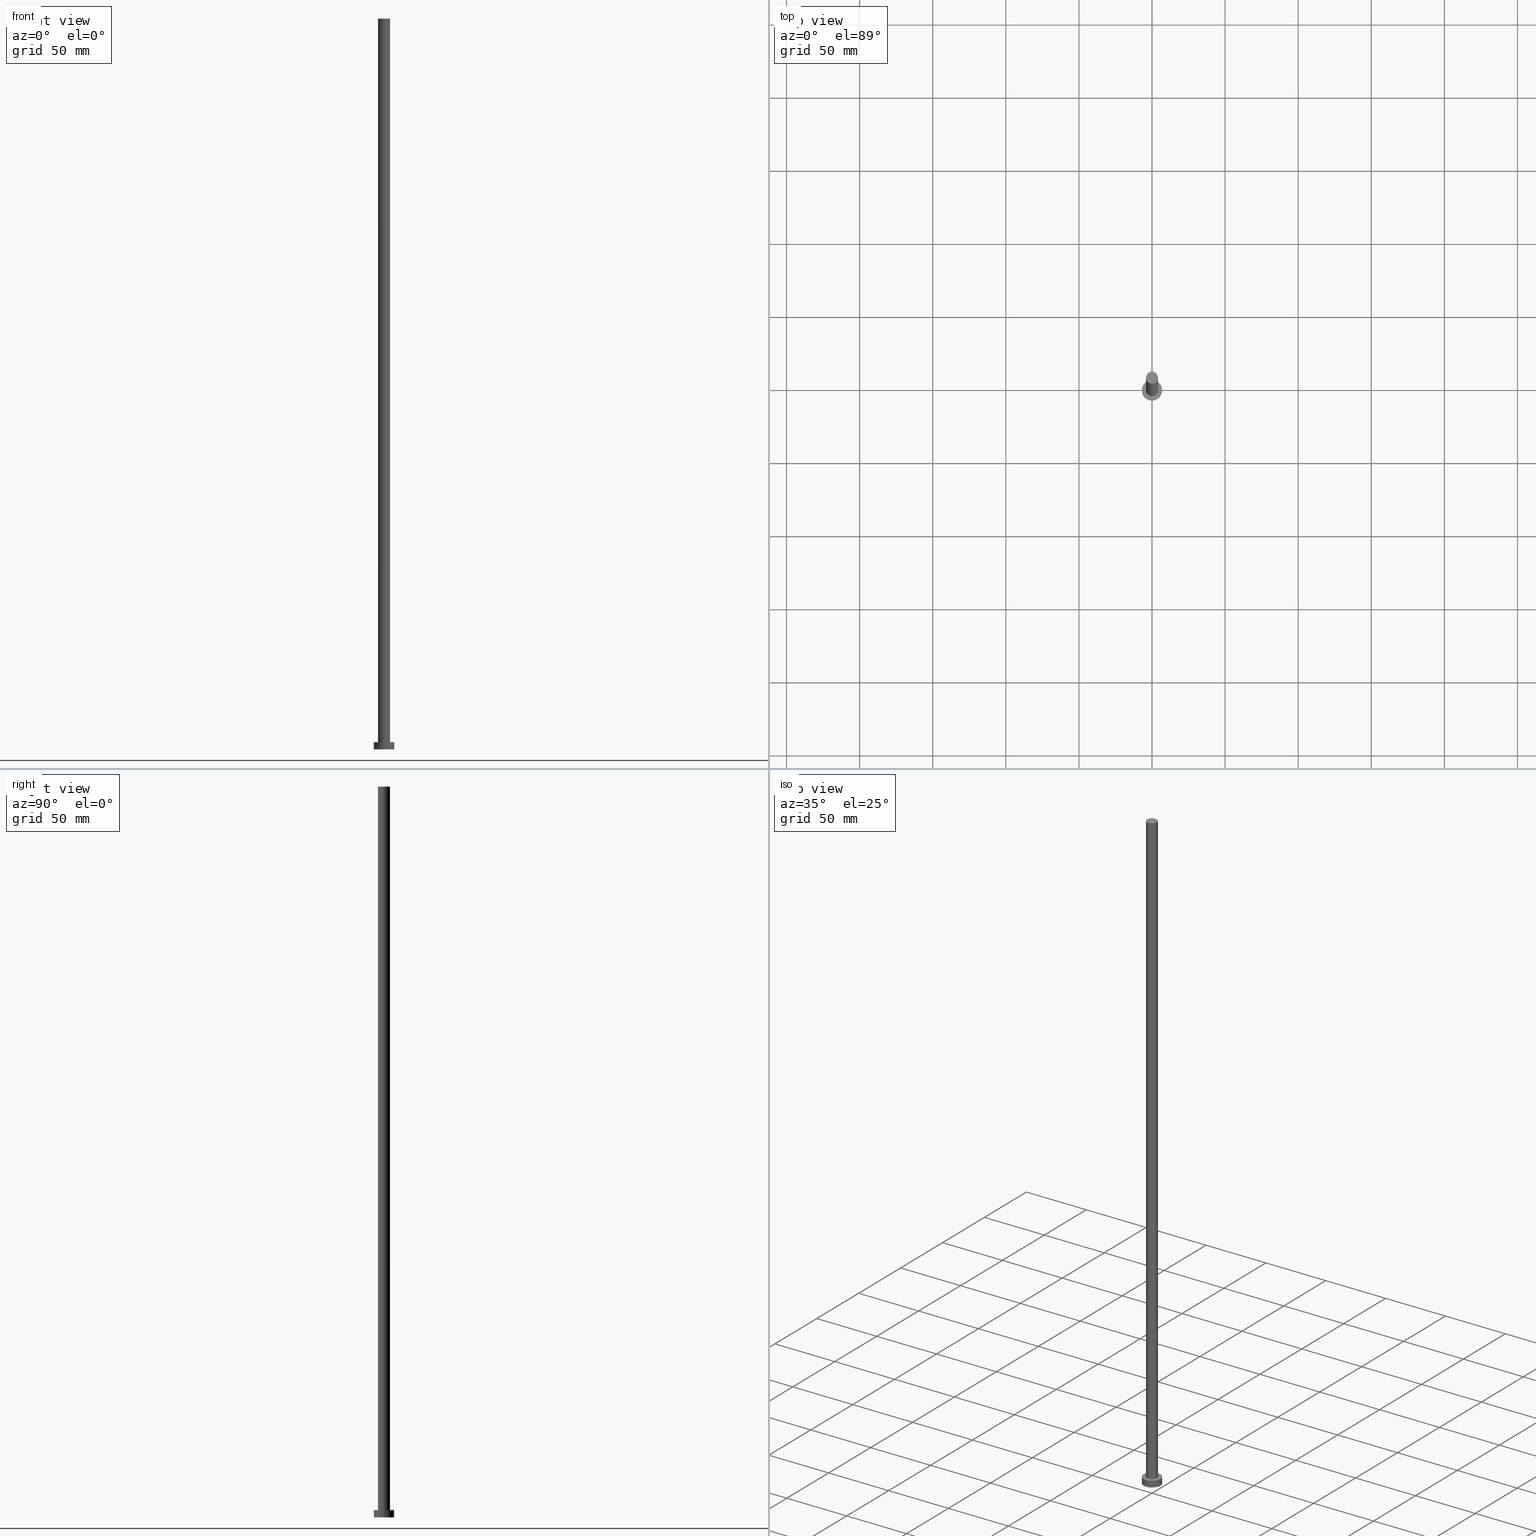
[diagram: canonical four-view strip — front | top / right | iso, engineering-drawing reading convention]
A machine part, canonical four-view strip (front | top / right | iso — engineering-drawing reading convention). The complete STEP part file that produces these views, byte-faithful:
ISO-10303-21;
HEADER;
FILE_DESCRIPTION (( 'STEP AP203' ),
    '1' );
FILE_NAME ('b986.STEP',
    '2023-02-12T11:11:28',
    ( '' ),
    ( '' ),
    'SwSTEP 2.0',
    'SolidWorks 2019',
    '' );
FILE_SCHEMA (( 'CONFIG_CONTROL_DESIGN' ));
ENDSEC;

DATA;
#1 = ORIENTED_EDGE ( 'NONE', *, *, #46, .F. ) ;
#2 = AXIS2_PLACEMENT_3D ( 'NONE', #101, #66, #202 ) ;
#3 = LINE ( 'NONE', #76, #24 ) ;
#4 = AXIS2_PLACEMENT_3D ( 'NONE', #176, #218, #241 ) ;
#5 = FACE_BOUND ( 'NONE', #37, .T. ) ;
#6 = DIRECTION ( 'NONE',  ( 1.000000000000000000, 0.000000000000000000, 0.000000000000000000 ) ) ;
#7 = CC_DESIGN_APPROVAL ( #210, ( #185 ) ) ;
#8 = CARTESIAN_POINT ( 'NONE',  ( 0.000000000000000000, 0.000000000000000000, 500.0000000000000000 ) ) ;
#9 = CYLINDRICAL_SURFACE ( 'NONE', #200, 4.099999999999999645 ) ;
#10 = AXIS2_PLACEMENT_3D ( 'NONE', #243, #203, #157 ) ;
#11 = AXIS2_PLACEMENT_3D ( 'NONE', #245, #50, #89 ) ;
#12 = DIRECTION ( 'NONE',  ( 0.000000000000000000, 0.000000000000000000, 1.000000000000000000 ) ) ;
#13 = APPROVAL_ROLE ( '' ) ;
#14 = LOCAL_TIME ( 12, 11, 28.00000000000000000, #171 ) ;
#15 = APPROVAL_ROLE ( '' ) ;
#16 = PERSON_AND_ORGANIZATION_ROLE ( 'creator' ) ;
#17 = VERTEX_POINT ( 'NONE', #193 ) ;
#18 = EDGE_LOOP ( 'NONE', ( #20, #98, #63, #148 ) ) ;
#19 = AXIS2_PLACEMENT_3D ( 'NONE', #124, #160, #199 ) ;
#20 = ORIENTED_EDGE ( 'NONE', *, *, #82, .F. ) ;
#21 = ADVANCED_FACE ( 'NONE', ( #179 ), #62, .T. ) ;
#22 = LINE ( 'NONE', #151, #88 ) ;
#23 = EDGE_LOOP ( 'NONE', ( #196, #188 ) ) ;
#24 = VECTOR ( 'NONE', #194, 1000.000000000000000 ) ;
#25 = DIRECTION ( 'NONE',  ( 1.000000000000000000, 0.000000000000000000, 0.000000000000000000 ) ) ;
#26 = FACE_OUTER_BOUND ( 'NONE', #253, .T. ) ;
#27 = PRODUCT ( 'b986', 'b986', '', ( #187 ) ) ;
#28 = DIRECTION ( 'NONE',  ( 0.000000000000000000, 0.000000000000000000, 1.000000000000000000 ) ) ;
#29 = DIRECTION ( 'NONE',  ( -0.000000000000000000, -0.000000000000000000, -1.000000000000000000 ) ) ;
#30 = ADVANCED_FACE ( 'NONE', ( #5, #255 ), #77, .T. ) ;
#31 = CYLINDRICAL_SURFACE ( 'NONE', #254, 4.099999999999999645 ) ;
#32 = PERSON_AND_ORGANIZATION_ROLE ( 'design_supplier' ) ;
#33 = DATE_AND_TIME ( #128, #215 ) ;
#34 = APPROVAL_STATUS ( 'not_yet_approved' ) ;
#35 = CC_DESIGN_PERSON_AND_ORGANIZATION_ASSIGNMENT ( #211, #249, ( #181 ) ) ;
#36 = AXIS2_PLACEMENT_3D ( 'NONE', #191, #120, #174 ) ;
#37 = EDGE_LOOP ( 'NONE', ( #80, #74 ) ) ;
#38 = LOCAL_TIME ( 12, 11, 28.00000000000000000, #145 ) ;
#39 = ORIENTED_EDGE ( 'NONE', *, *, #40, .T. ) ;
#40 = EDGE_CURVE ( 'NONE', #240, #135, #236, .T. ) ;
#41 = ORIENTED_EDGE ( 'NONE', *, *, #40, .F. ) ;
#42 = VECTOR ( 'NONE', #136, 1000.000000000000000 ) ;
#43 = DIRECTION ( 'NONE',  ( 0.000000000000000000, 0.000000000000000000, 1.000000000000000000 ) ) ;
#44 = EDGE_LOOP ( 'NONE', ( #1, #39, #95, #237 ) ) ;
#45 = CARTESIAN_POINT ( 'NONE',  ( -7.000000000000000000, 0.000000000000000000, 0.000000000000000000 ) ) ;
#46 = EDGE_CURVE ( 'NONE', #240, #216, #109, .T. ) ;
#47 = CARTESIAN_POINT ( 'NONE',  ( -4.099999999999999645, 0.000000000000000000, 500.0000000000000000 ) ) ;
#48 = CARTESIAN_POINT ( 'NONE',  ( -4.099999999999999645, 0.000000000000000000, 500.0000000000000000 ) ) ;
#49 = EDGE_CURVE ( 'NONE', #216, #240, #161, .T. ) ;
#50 = DIRECTION ( 'NONE',  ( 0.000000000000000000, 0.000000000000000000, 1.000000000000000000 ) ) ;
#51 = CARTESIAN_POINT ( 'NONE',  ( -4.099999999999999645, 0.000000000000000000, 5.000000000000000000 ) ) ;
#52 = UNCERTAINTY_MEASURE_WITH_UNIT (LENGTH_MEASURE( 1.000000000000000082E-05 ), #225, 'distance_accuracy_value', 'NONE');
#53 = APPROVAL_STATUS ( 'not_yet_approved' ) ;
#54 = PERSON_AND_ORGANIZATION ( #231, #149 ) ;
#55 = APPLICATION_PROTOCOL_DEFINITION ( 'international standard', 'config_control_design', 1994, #105 ) ;
#56 = APPLICATION_CONTEXT ( 'configuration controlled 3d designs of mechanical parts and assemblies' ) ;
#57 = VECTOR ( 'NONE', #182, 1000.000000000000000 ) ;
#58 = PERSON_AND_ORGANIZATION ( #231, #149 ) ;
#59 = DIRECTION ( 'NONE',  ( 1.000000000000000000, 0.000000000000000000, 0.000000000000000000 ) ) ;
#60 = DIRECTION ( 'NONE',  ( 0.000000000000000000, 0.000000000000000000, 1.000000000000000000 ) ) ;
#61 = CARTESIAN_POINT ( 'NONE',  ( 0.000000000000000000, 0.000000000000000000, 500.0000000000000000 ) ) ;
#62 = PLANE ( 'NONE',  #81 ) ;
#63 = ORIENTED_EDGE ( 'NONE', *, *, #206, .T. ) ;
#64 = CARTESIAN_POINT ( 'NONE',  ( 0.000000000000000000, 0.000000000000000000, 500.0000000000000000 ) ) ;
#65 = CARTESIAN_POINT ( 'NONE',  ( 0.000000000000000000, 0.000000000000000000, 500.0000000000000000 ) ) ;
#66 = DIRECTION ( 'NONE',  ( 0.000000000000000000, 0.000000000000000000, 1.000000000000000000 ) ) ;
#67 = AXIS2_PLACEMENT_3D ( 'NONE', #222, #244, #6 ) ;
#68 = COORDINATED_UNIVERSAL_TIME_OFFSET ( 1, 0, .AHEAD. ) ;
#69 = SHAPE_DEFINITION_REPRESENTATION ( #99, #79 ) ;
#70 = APPROVAL_STATUS ( 'not_yet_approved' ) ;
#71 = PERSON_AND_ORGANIZATION ( #231, #149 ) ;
#72 = EDGE_CURVE ( 'NONE', #216, #178, #3, .T. ) ;
#73 = APPROVAL_DATE_TIME ( #207, #210 ) ;
#74 = ORIENTED_EDGE ( 'NONE', *, *, #247, .F. ) ;
#75 = LOCAL_TIME ( 12, 11, 28.00000000000000000, #68 ) ;
#76 = CARTESIAN_POINT ( 'NONE',  ( -7.000000000000000000, 0.000000000000000000, 5.000000000000000000 ) ) ;
#77 = PLANE ( 'NONE',  #4 ) ;
#78 = EDGE_LOOP ( 'NONE', ( #131, #119 ) ) ;
#79 = ADVANCED_BREP_SHAPE_REPRESENTATION ( 'b986', ( #150, #195 ), #121 ) ;
#80 = ORIENTED_EDGE ( 'NONE', *, *, #168, .F. ) ;
#81 = AXIS2_PLACEMENT_3D ( 'NONE', #61, #60, #133 ) ;
#82 = EDGE_CURVE ( 'NONE', #17, #97, #22, .T. ) ;
#83 = ORIENTED_EDGE ( 'NONE', *, *, #72, .T. ) ;
#84 = LINE ( 'NONE', #47, #57 ) ;
#85 = LOCAL_TIME ( 12, 11, 28.00000000000000000, #167 ) ;
#86 = DIRECTION ( 'NONE',  ( 0.000000000000000000, 0.000000000000000000, 1.000000000000000000 ) ) ;
#87 = ADVANCED_FACE ( 'NONE', ( #117 ), #192, .T. ) ;
#88 = VECTOR ( 'NONE', #214, 1000.000000000000000 ) ;
#89 = DIRECTION ( 'NONE',  ( 1.000000000000000000, 0.000000000000000000, 0.000000000000000000 ) ) ;
#90 = APPROVAL_DATE_TIME ( #143, #250 ) ;
#91 = EDGE_CURVE ( 'NONE', #17, #111, #230, .T. ) ;
#92 = CC_DESIGN_DATE_AND_TIME_ASSIGNMENT ( #108, #169, ( #238 ) ) ;
#93 = PERSON_AND_ORGANIZATION_ROLE ( 'design_owner' ) ;
#94 = ORIENTED_EDGE ( 'NONE', *, *, #82, .T. ) ;
#95 = ORIENTED_EDGE ( 'NONE', *, *, #189, .T. ) ;
#96 = ORIENTED_EDGE ( 'NONE', *, *, #49, .F. ) ;
#97 = VERTEX_POINT ( 'NONE', #137 ) ;
#98 = ORIENTED_EDGE ( 'NONE', *, *, #213, .F. ) ;
#99 = PRODUCT_DEFINITION_SHAPE ( 'NONE', 'NONE',  #238 ) ;
#100 = CARTESIAN_POINT ( 'NONE',  ( 7.000000000000000000, 8.572527594031473190E-16, 0.000000000000000000 ) ) ;
#101 = CARTESIAN_POINT ( 'NONE',  ( 0.000000000000000000, 0.000000000000000000, 0.000000000000000000 ) ) ;
#102 = CC_DESIGN_APPROVAL ( #197, ( #181 ) ) ;
#103 = CARTESIAN_POINT ( 'NONE',  ( -7.000000000000000000, 0.000000000000000000, 5.000000000000000000 ) ) ;
#104 = DIRECTION ( 'NONE',  ( 1.000000000000000000, 0.000000000000000000, 0.000000000000000000 ) ) ;
#105 = APPLICATION_CONTEXT ( 'configuration controlled 3d designs of mechanical parts and assemblies' ) ;
#106 = DIRECTION ( 'NONE',  ( 1.000000000000000000, 0.000000000000000000, 0.000000000000000000 ) ) ;
#107 = ADVANCED_FACE ( 'NONE', ( #26 ), #31, .T. ) ;
#108 = DATE_AND_TIME ( #170, #14 ) ;
#109 = CIRCLE ( 'NONE', #142, 7.000000000000000000 ) ;
#110 = CC_DESIGN_DATE_AND_TIME_ASSIGNMENT ( #226, #234, ( #181 ) ) ;
#111 = VERTEX_POINT ( 'NONE', #48 ) ;
#112 = PERSON_AND_ORGANIZATION ( #231, #149 ) ;
#113 = ORIENTED_EDGE ( 'NONE', *, *, #46, .T. ) ;
#114 = APPROVAL_ROLE ( '' ) ;
#115 = ORIENTED_EDGE ( 'NONE', *, *, #247, .T. ) ;
#116 = APPROVAL_PERSON_ORGANIZATION ( #54, #210, #114 ) ;
#117 = FACE_OUTER_BOUND ( 'NONE', #155, .T. ) ;
#118 = CC_DESIGN_SECURITY_CLASSIFICATION ( #181, ( #185 ) ) ;
#119 = ORIENTED_EDGE ( 'NONE', *, *, #189, .F. ) ;
#120 = DIRECTION ( 'NONE',  ( 0.000000000000000000, 0.000000000000000000, 1.000000000000000000 ) ) ;
#121 =( GEOMETRIC_REPRESENTATION_CONTEXT ( 3 ) GLOBAL_UNCERTAINTY_ASSIGNED_CONTEXT ( ( #52 ) ) GLOBAL_UNIT_ASSIGNED_CONTEXT ( ( #225, #127, #165 ) ) REPRESENTATION_CONTEXT ( 'NONE', 'WORKASPACE' ) );
#122 = EDGE_LOOP ( 'NONE', ( #172, #113 ) ) ;
#123 = FACE_OUTER_BOUND ( 'NONE', #18, .T. ) ;
#124 = CARTESIAN_POINT ( 'NONE',  ( 0.000000000000000000, 0.000000000000000000, 5.000000000000000000 ) ) ;
#125 = FACE_OUTER_BOUND ( 'NONE', #78, .T. ) ;
#126 = APPROVAL_PERSON_ORGANIZATION ( #71, #250, #15 ) ;
#127 =( NAMED_UNIT ( * ) PLANE_ANGLE_UNIT ( ) SI_UNIT ( $, .RADIAN. ) );
#128 = CALENDAR_DATE ( 2023, 12, 2 ) ;
#129 = CALENDAR_DATE ( 2023, 12, 2 ) ;
#130 = CALENDAR_DATE ( 2023, 12, 2 ) ;
#131 = ORIENTED_EDGE ( 'NONE', *, *, #219, .F. ) ;
#132 = ADVANCED_FACE ( 'NONE', ( #138 ), #223, .T. ) ;
#133 = DIRECTION ( 'NONE',  ( 1.000000000000000000, 0.000000000000000000, -0.000000000000000000 ) ) ;
#134 = AXIS2_PLACEMENT_3D ( 'NONE', #184, #224, #180 ) ;
#135 = VERTEX_POINT ( 'NONE', #100 ) ;
#136 = DIRECTION ( 'NONE',  ( -0.000000000000000000, -0.000000000000000000, -1.000000000000000000 ) ) ;
#137 = CARTESIAN_POINT ( 'NONE',  ( 4.099999999999999645, 5.021051876504147385E-16, 5.000000000000000000 ) ) ;
#138 = FACE_OUTER_BOUND ( 'NONE', #44, .T. ) ;
#139 = CARTESIAN_POINT ( 'NONE',  ( 0.000000000000000000, 0.000000000000000000, 5.000000000000000000 ) ) ;
#140 = CIRCLE ( 'NONE', #235, 4.099999999999999645 ) ;
#141 = CC_DESIGN_PERSON_AND_ORGANIZATION_ASSIGNMENT ( #209, #16, ( #238 ) ) ;
#142 = AXIS2_PLACEMENT_3D ( 'NONE', #217, #43, #59 ) ;
#143 = DATE_AND_TIME ( #129, #85 ) ;
#144 = ADVANCED_FACE ( 'NONE', ( #123 ), #9, .T. ) ;
#145 = COORDINATED_UNIVERSAL_TIME_OFFSET ( 1, 0, .AHEAD. ) ;
#146 = AXIS2_PLACEMENT_3D ( 'NONE', #64, #12, #25 ) ;
#147 = APPROVAL_DATE_TIME ( #33, #197 ) ;
#148 = ORIENTED_EDGE ( 'NONE', *, *, #168, .T. ) ;
#149 = ORGANIZATION ( 'NEUR�EN�', 'NEUR�EN�', '' ) ;
#150 = MANIFOLD_SOLID_BREP ( 'P�idat vysunut�m3', #156 ) ;
#151 = CARTESIAN_POINT ( 'NONE',  ( 4.099999999999999645, 5.021051876504147385E-16, 500.0000000000000000 ) ) ;
#152 = CARTESIAN_POINT ( 'NONE',  ( 7.000000000000000000, 8.572527594031473190E-16, 5.000000000000000000 ) ) ;
#153 = CC_DESIGN_PERSON_AND_ORGANIZATION_ASSIGNMENT ( #229, #32, ( #185 ) ) ;
#154 = ORIENTED_EDGE ( 'NONE', *, *, #91, .F. ) ;
#155 = EDGE_LOOP ( 'NONE', ( #41, #96, #83, #239 ) ) ;
#156 = CLOSED_SHELL ( 'NONE', ( #107, #132, #87, #30, #173, #144, #21 ) ) ;
#157 = DIRECTION ( 'NONE',  ( -1.000000000000000000, 0.000000000000000000, 0.000000000000000000 ) ) ;
#158 = CIRCLE ( 'NONE', #11, 7.000000000000000000 ) ;
#159 = DIRECTION ( 'NONE',  ( -0.000000000000000000, -0.000000000000000000, -1.000000000000000000 ) ) ;
#160 = DIRECTION ( 'NONE',  ( -0.000000000000000000, -0.000000000000000000, -1.000000000000000000 ) ) ;
#161 = CIRCLE ( 'NONE', #36, 7.000000000000000000 ) ;
#162 = CIRCLE ( 'NONE', #67, 4.099999999999999645 ) ;
#163 = CARTESIAN_POINT ( 'NONE',  ( 7.000000000000000000, 8.572527594031473190E-16, 5.000000000000000000 ) ) ;
#164 = CIRCLE ( 'NONE', #134, 7.000000000000000000 ) ;
#165 =( NAMED_UNIT ( * ) SI_UNIT ( $, .STERADIAN. ) SOLID_ANGLE_UNIT ( ) );
#166 = PERSON_AND_ORGANIZATION ( #231, #149 ) ;
#167 = COORDINATED_UNIVERSAL_TIME_OFFSET ( 1, 0, .AHEAD. ) ;
#168 = EDGE_CURVE ( 'NONE', #175, #97, #162, .T. ) ;
#169 = DATE_TIME_ROLE ( 'creation_date' ) ;
#170 = CALENDAR_DATE ( 2023, 12, 2 ) ;
#171 = COORDINATED_UNIVERSAL_TIME_OFFSET ( 1, 0, .AHEAD. ) ;
#172 = ORIENTED_EDGE ( 'NONE', *, *, #49, .T. ) ;
#173 = ADVANCED_FACE ( 'NONE', ( #125 ), #198, .F. ) ;
#174 = DIRECTION ( 'NONE',  ( 1.000000000000000000, 0.000000000000000000, 0.000000000000000000 ) ) ;
#175 = VERTEX_POINT ( 'NONE', #51 ) ;
#176 = CARTESIAN_POINT ( 'NONE',  ( 0.000000000000000000, 0.000000000000000000, 5.000000000000000000 ) ) ;
#177 = CIRCLE ( 'NONE', #204, 4.099999999999999645 ) ;
#178 = VERTEX_POINT ( 'NONE', #45 ) ;
#179 = FACE_OUTER_BOUND ( 'NONE', #23, .T. ) ;
#180 = DIRECTION ( 'NONE',  ( 1.000000000000000000, 0.000000000000000000, 0.000000000000000000 ) ) ;
#181 = SECURITY_CLASSIFICATION ( '', '', #251 ) ;
#182 = DIRECTION ( 'NONE',  ( -0.000000000000000000, -0.000000000000000000, -1.000000000000000000 ) ) ;
#183 = CARTESIAN_POINT ( 'NONE',  ( 0.000000000000000000, 0.000000000000000000, 500.0000000000000000 ) ) ;
#184 = CARTESIAN_POINT ( 'NONE',  ( 0.000000000000000000, 0.000000000000000000, 0.000000000000000000 ) ) ;
#185 = PRODUCT_DEFINITION_FORMATION_WITH_SPECIFIED_SOURCE ( 'LIBOVOLN�', '', #27, .NOT_KNOWN. ) ;
#186 = APPLICATION_PROTOCOL_DEFINITION ( 'international standard', 'config_control_design', 1994, #56 ) ;
#187 = MECHANICAL_CONTEXT ( 'NONE', #56, 'mechanical' ) ;
#188 = ORIENTED_EDGE ( 'NONE', *, *, #91, .T. ) ;
#189 = EDGE_CURVE ( 'NONE', #135, #178, #164, .T. ) ;
#190 = CARTESIAN_POINT ( 'NONE',  ( 0.000000000000000000, 0.000000000000000000, 0.000000000000000000 ) ) ;
#191 = CARTESIAN_POINT ( 'NONE',  ( 0.000000000000000000, 0.000000000000000000, 5.000000000000000000 ) ) ;
#192 = CYLINDRICAL_SURFACE ( 'NONE', #10, 7.000000000000000000 ) ;
#193 = CARTESIAN_POINT ( 'NONE',  ( 4.099999999999999645, 5.021051876504147385E-16, 500.0000000000000000 ) ) ;
#194 = DIRECTION ( 'NONE',  ( -0.000000000000000000, -0.000000000000000000, -1.000000000000000000 ) ) ;
#195 = AXIS2_PLACEMENT_3D ( 'NONE', #190, #205, #208 ) ;
#196 = ORIENTED_EDGE ( 'NONE', *, *, #213, .T. ) ;
#197 = APPROVAL ( #53, 'NEUR�EN�' ) ;
#198 = PLANE ( 'NONE',  #2 ) ;
#199 = DIRECTION ( 'NONE',  ( -1.000000000000000000, 0.000000000000000000, 0.000000000000000000 ) ) ;
#200 = AXIS2_PLACEMENT_3D ( 'NONE', #65, #29, #221 ) ;
#201 = CC_DESIGN_PERSON_AND_ORGANIZATION_ASSIGNMENT ( #166, #248, ( #185 ) ) ;
#202 = DIRECTION ( 'NONE',  ( 1.000000000000000000, 0.000000000000000000, -0.000000000000000000 ) ) ;
#203 = DIRECTION ( 'NONE',  ( -0.000000000000000000, -0.000000000000000000, -1.000000000000000000 ) ) ;
#204 = AXIS2_PLACEMENT_3D ( 'NONE', #139, #86, #104 ) ;
#205 = DIRECTION ( 'NONE',  ( 0.000000000000000000, 0.000000000000000000, 1.000000000000000000 ) ) ;
#206 = EDGE_CURVE ( 'NONE', #111, #175, #84, .T. ) ;
#207 = DATE_AND_TIME ( #130, #38 ) ;
#208 = DIRECTION ( 'NONE',  ( 1.000000000000000000, 0.000000000000000000, 0.000000000000000000 ) ) ;
#209 = PERSON_AND_ORGANIZATION ( #231, #149 ) ;
#210 = APPROVAL ( #70, 'NEUR�EN�' ) ;
#211 = PERSON_AND_ORGANIZATION ( #231, #149 ) ;
#212 = ORIENTED_EDGE ( 'NONE', *, *, #206, .F. ) ;
#213 = EDGE_CURVE ( 'NONE', #111, #17, #140, .T. ) ;
#214 = DIRECTION ( 'NONE',  ( -0.000000000000000000, -0.000000000000000000, -1.000000000000000000 ) ) ;
#215 = LOCAL_TIME ( 12, 11, 28.00000000000000000, #233 ) ;
#216 = VERTEX_POINT ( 'NONE', #103 ) ;
#217 = CARTESIAN_POINT ( 'NONE',  ( 0.000000000000000000, 0.000000000000000000, 5.000000000000000000 ) ) ;
#218 = DIRECTION ( 'NONE',  ( 0.000000000000000000, 0.000000000000000000, 1.000000000000000000 ) ) ;
#219 = EDGE_CURVE ( 'NONE', #178, #135, #158, .T. ) ;
#220 = APPROVAL_PERSON_ORGANIZATION ( #58, #197, #13 ) ;
#221 = DIRECTION ( 'NONE',  ( -1.000000000000000000, 0.000000000000000000, 0.000000000000000000 ) ) ;
#222 = CARTESIAN_POINT ( 'NONE',  ( 0.000000000000000000, 0.000000000000000000, 5.000000000000000000 ) ) ;
#223 = CYLINDRICAL_SURFACE ( 'NONE', #19, 7.000000000000000000 ) ;
#224 = DIRECTION ( 'NONE',  ( 0.000000000000000000, 0.000000000000000000, 1.000000000000000000 ) ) ;
#225 =( LENGTH_UNIT ( ) NAMED_UNIT ( * ) SI_UNIT ( .MILLI., .METRE. ) );
#226 = DATE_AND_TIME ( #228, #75 ) ;
#227 = CC_DESIGN_APPROVAL ( #250, ( #238 ) ) ;
#228 = CALENDAR_DATE ( 2023, 12, 2 ) ;
#229 = PERSON_AND_ORGANIZATION ( #231, #149 ) ;
#230 = CIRCLE ( 'NONE', #146, 4.099999999999999645 ) ;
#231 = PERSON ( 'NEUR�EN�', 'NEUR�EN�', 'NEUR�EN�', ('NEUR�EN�'), ('NEUR�EN�'), ('NEUR�EN�') ) ;
#232 = PRODUCT_RELATED_PRODUCT_CATEGORY ( 'detail', '', ( #27 ) ) ;
#233 = COORDINATED_UNIVERSAL_TIME_OFFSET ( 1, 0, .AHEAD. ) ;
#234 = DATE_TIME_ROLE ( 'classification_date' ) ;
#235 = AXIS2_PLACEMENT_3D ( 'NONE', #8, #28, #106 ) ;
#236 = LINE ( 'NONE', #152, #42 ) ;
#237 = ORIENTED_EDGE ( 'NONE', *, *, #72, .F. ) ;
#238 = PRODUCT_DEFINITION ( 'NEZN�M�', '', #185, #246 ) ;
#239 = ORIENTED_EDGE ( 'NONE', *, *, #219, .T. ) ;
#240 = VERTEX_POINT ( 'NONE', #163 ) ;
#241 = DIRECTION ( 'NONE',  ( 1.000000000000000000, 0.000000000000000000, -0.000000000000000000 ) ) ;
#242 = DIRECTION ( 'NONE',  ( -1.000000000000000000, 0.000000000000000000, 0.000000000000000000 ) ) ;
#243 = CARTESIAN_POINT ( 'NONE',  ( 0.000000000000000000, 0.000000000000000000, 5.000000000000000000 ) ) ;
#244 = DIRECTION ( 'NONE',  ( 0.000000000000000000, 0.000000000000000000, 1.000000000000000000 ) ) ;
#245 = CARTESIAN_POINT ( 'NONE',  ( 0.000000000000000000, 0.000000000000000000, 0.000000000000000000 ) ) ;
#246 = DESIGN_CONTEXT ( 'detailed design', #105, 'design' ) ;
#247 = EDGE_CURVE ( 'NONE', #97, #175, #177, .T. ) ;
#248 = PERSON_AND_ORGANIZATION_ROLE ( 'creator' ) ;
#249 = PERSON_AND_ORGANIZATION_ROLE ( 'classification_officer' ) ;
#250 = APPROVAL ( #34, 'NEUR�EN�' ) ;
#251 = SECURITY_CLASSIFICATION_LEVEL ( 'unclassified' ) ;
#252 = CC_DESIGN_PERSON_AND_ORGANIZATION_ASSIGNMENT ( #112, #93, ( #27 ) ) ;
#253 = EDGE_LOOP ( 'NONE', ( #154, #94, #115, #212 ) ) ;
#254 = AXIS2_PLACEMENT_3D ( 'NONE', #183, #159, #242 ) ;
#255 = FACE_OUTER_BOUND ( 'NONE', #122, .T. ) ;
ENDSEC;
END-ISO-10303-21;
